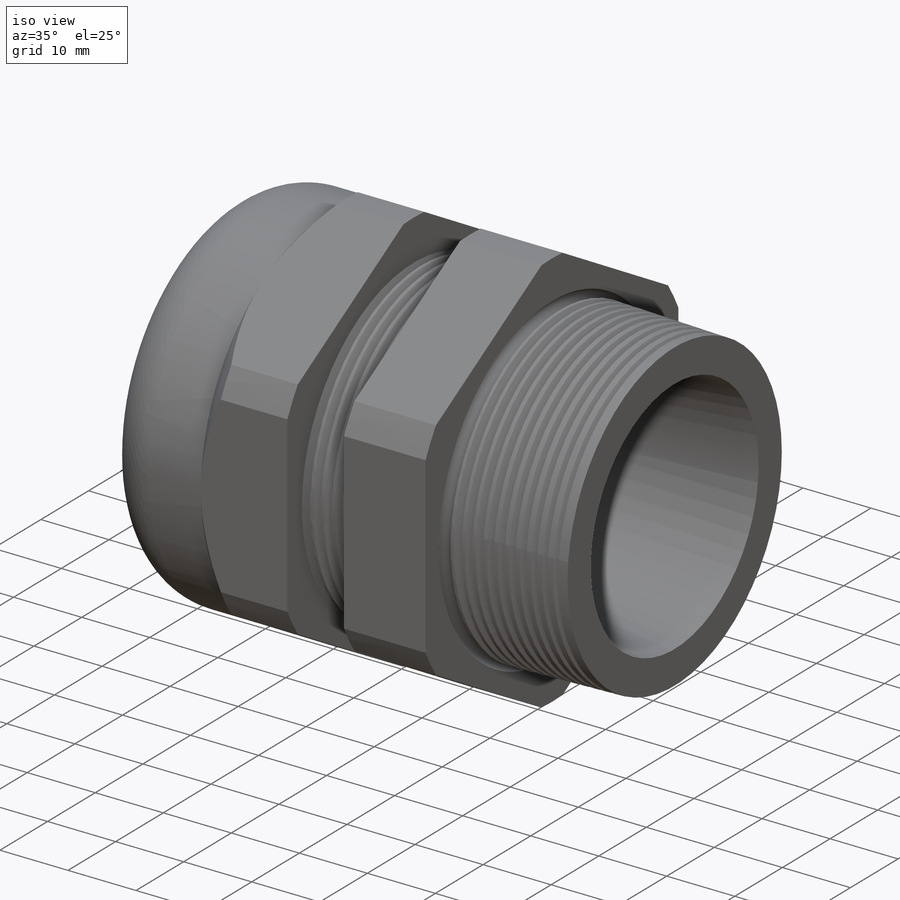
[diagram: iso view]
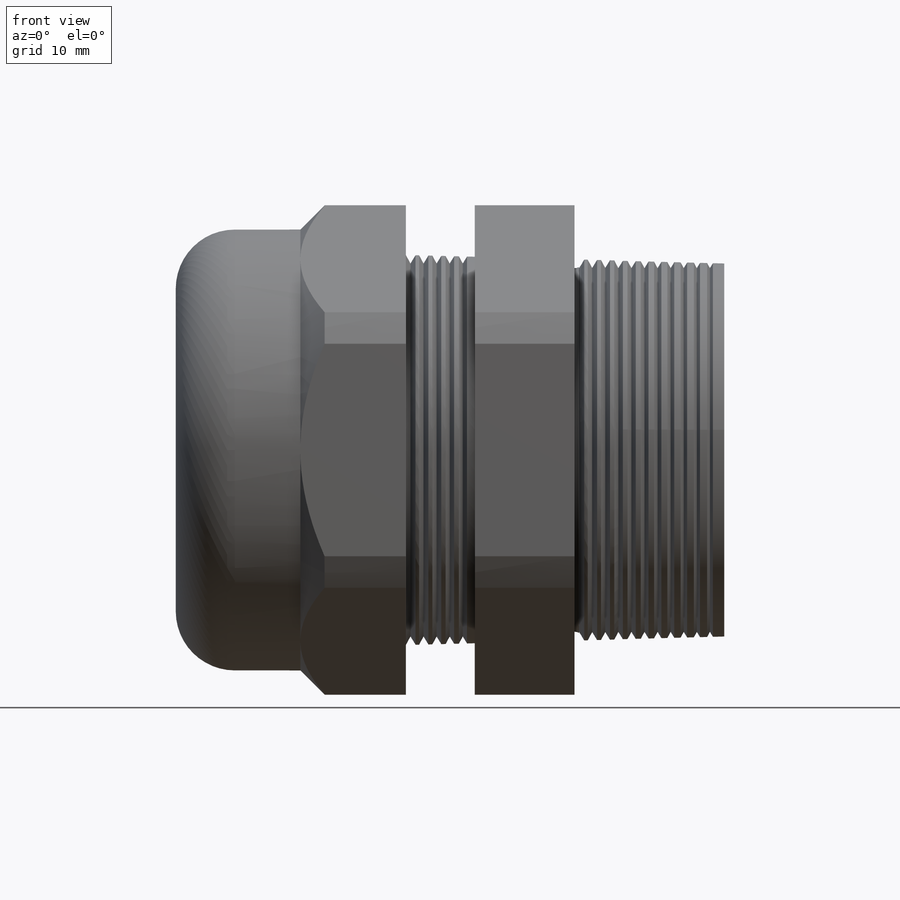
[diagram: front view]
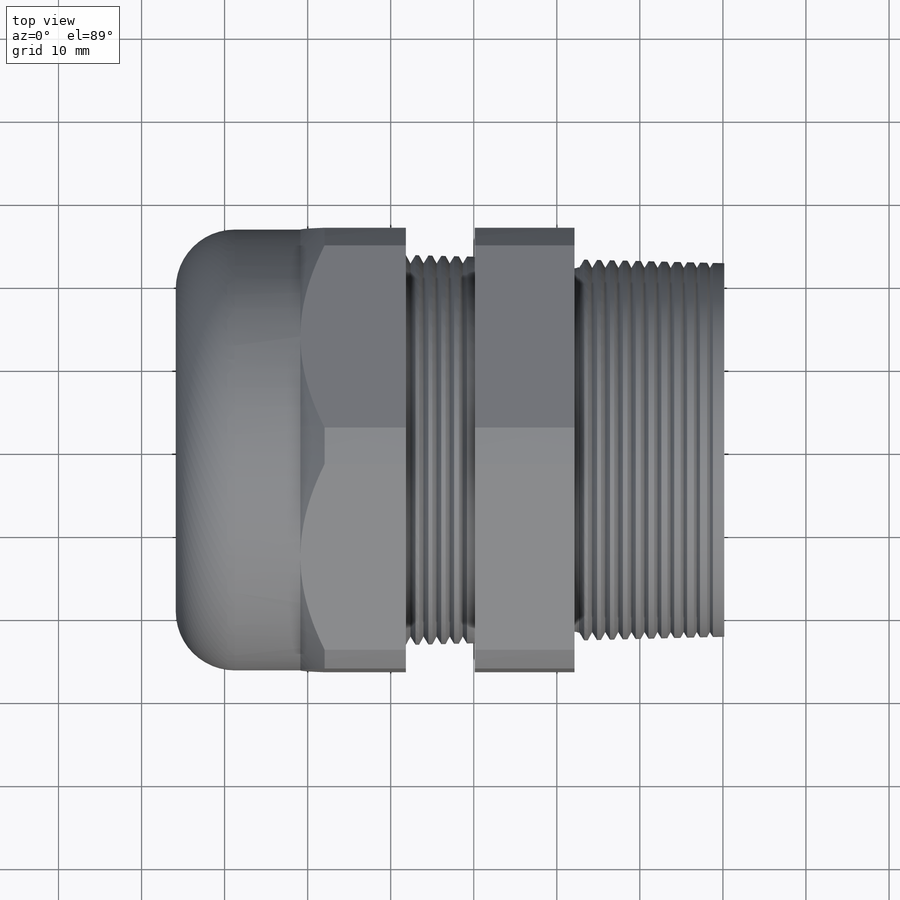
[diagram: top view]
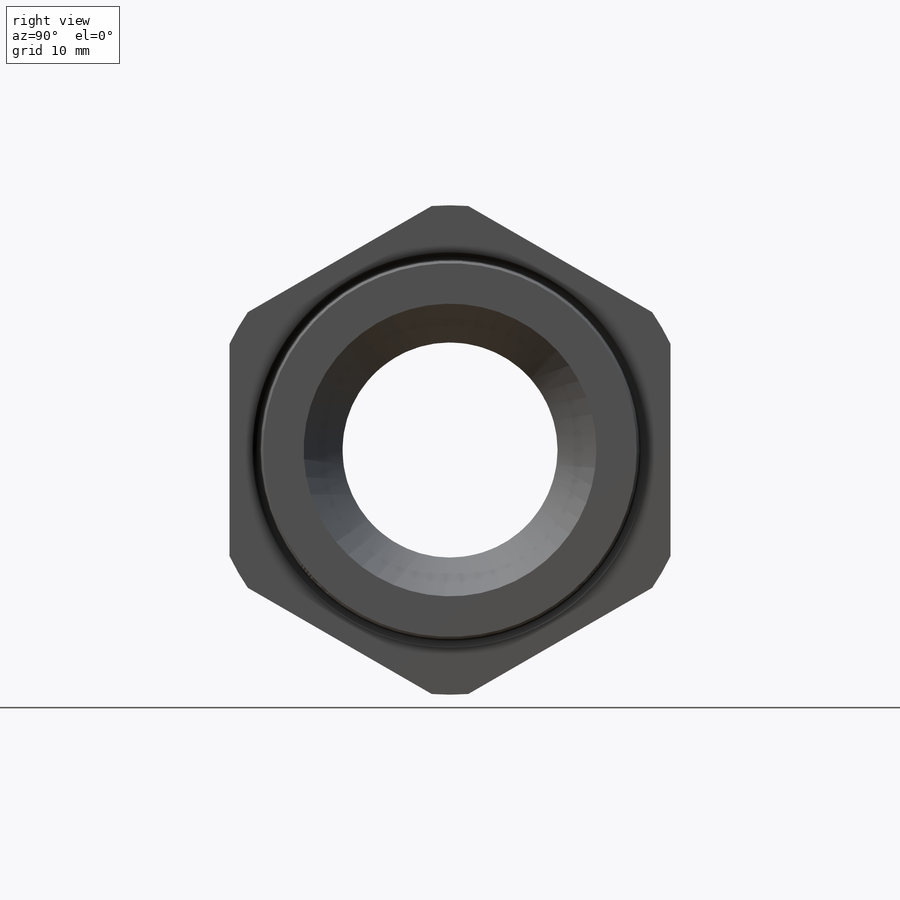
[diagram: right view]
SOLIDWORKS PART (.sldprt)
format: sldprt  version: not decoded by parser v0  size: 672,768 bytes
history: native  units: mm
features: sketch x13, revolve x4, cut_revolve x3, pattern_linear x2, cut_extrude x2, fillet x2, extrude x2, material x1, helix x1, sweep x1 (+14 scaffold rows collapsed; 1 parser-record rows omitted)
feature tree (46):
  scaffold x14  (default folders/planes/origin — collapsed)
  material  "Material <not specified>"
  sketch  "Sketch10"  dims[c1.D1=36.068mm c1.D2=9.017mm c1.D3=15.24mm c1.D4=12.8905mm c2.D3=12.8905mm c2.D4=~8.662129mm c3.D4=91.5deg c3.D5=12.8905mm c3.A=7.62mm c4.D5=28.956mm c5.D5=~1.649495deg c5.D4=7.874mm c5.D6=53.086mm c5.D7=15.24mm c5.D8=106.172mm c5.D9=~14.99997mm c5.D10=12.7mm c5.D11=~11.999976mm c5.D12=7.874mm c5.D=18.034mm c6.D12=5.2705mm c6.D3=~11.203252mm c7.D3=~91.649495deg c7.D4=5.2705mm c8.D3=~11.203252mm c9.D3=~91.649495deg c10.D3=~7.877264mm c11.D3=~1.649495deg c11.D4=~7.877264mm c12.D3=~19.114643mm c13.D3=1.5deg c13.A=46.99mm c13.D4=36.068mm c13.D1=66.04mm c13.D5=35.2425mm c13.D2=25.908mm c14.D3=~14.991137mm c15.D3=1.5deg c15.D4=3.429mm]
  revolve  "Revolve2"  Angle=360deg
  sketch  "Sketch26"  dims[c1.D1=~1.284197mm c2.D1=60.0deg c2.D2=~1.284197mm c3.D2=60.0deg c3.H=1.016mm c4.H=1.016mm c4.D2=~0.703631mm c5.D2=120.0deg c5.D3=1.016mm]
  cut_revolve  "Cut-Revolve1"  Angle=360deg
  pattern_linear  "LPattern6"  Count1=5 Count2=1 Spacing1=1.5748mm Spacing2=50mm
  sketch  "Sketch27"  dims[c1.D1=~0.433283mm c2.D1=60.0deg c2.D2=~0.417512mm c3.D2=60.0deg c3.D3=1.016mm]
  cut_revolve  "Cut-Revolve2"  Angle=360deg
  pattern_linear  "LPattern7"  Count1=11 Count2=1 Spacing1=1.5748mm Spacing2=50mm
  sketch  "Sketch12"  dims[c1.D2=~58.92546mm c1.D1=53.086mm c2.D2=~0.385494mm c2.D3=~1.335389mm]
  cut_extrude  "Cut-Extrude2"  [1 undecoded]
  sketch  "Sketch13"  dims[c1.D1=54.102mm c1.D3=~66.783056mm c2.D3=2.5deg c2.D4=~2.542703mm c2.D2=6.0mm c2.D1=53.086mm c3.D2=27.02mm c4.D2=1.5deg c5.D2=~6.467956mm c5.D4=23.876mm c6.D2=6.0mm]
  sketch  "Sketch23"  dims[D1=0.2286mm D2=0.762mm]
  revolve  "Revolve6"  Angle=360deg
  sketch  "Sketch30"  dims[D2=0.2286mm D1=0.762mm]
  revolve  "Revolve8"  Angle=360deg
  fillet  "Fillet4"  Radius=7.112mm
  parser-record x1  (decoder bookkeeping rows leaked as tree rows — omitted from the tree; the rows remain in map.json)
  revolve  "Revolve3"  Angle=360deg
  sketch  "Sketch15"  dims[D1=17.526mm]
  helix  "Helix/Spiral1"  Pitch=53.086mm
  sketch  "Sketch16"  dims[c1.D1=~2.281065mm c2.D1=95.0deg c2.D2=~2.15888mm c2.D3=3.302mm c3.D2=2.794mm c3.D1=2.794mm c4.D1=95.0deg c4.D2=~0.365341mm]
  sweep  "Cut-Sweep1"
  sketch  "Sketch17"  dims[D1=3.429mm]
  extrude  "Extrude1"  Depth=6mm
  fillet  "Fillet2"  Radius=0.508mm
  sketch  "Sketch20"
  extrude  "Extrude2"  [1 undecoded]
  sketch  "Sketch19"
  cut_extrude  "Cut-Extrude3"  Depth=3.99796mm
  sketch  "Sketch28"  dims[c1.D2=1.905mm c1.D1=0.508mm c1.D3=0.0254mm c2.D1=0.127mm]
  cut_revolve  "Cut-Revolve3"  Angle=360deg
decode coverage: 25 of 30 modeling features carry decoded parameters
note: ~ marks probable driven/reference dimensions
note: 2 parameter values undecoded
note: suppression state not decoded; provenance and decode notes live in map.json
